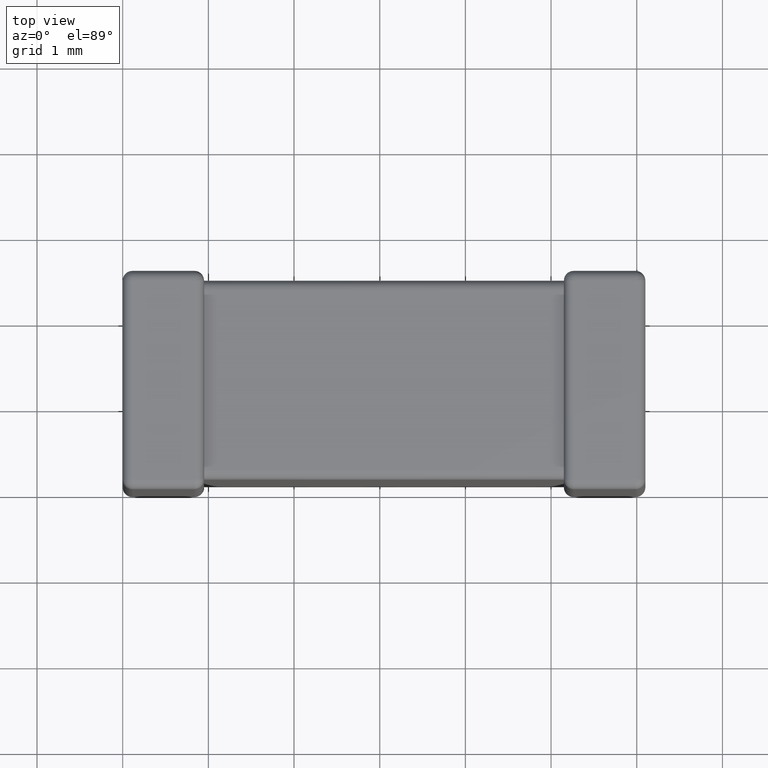
[diagram: clean part render]
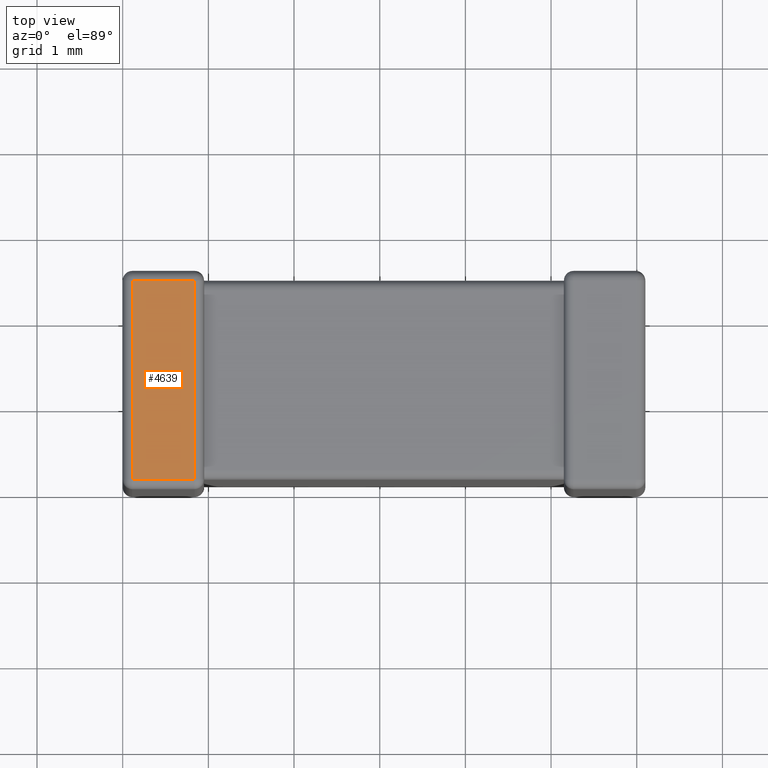
[diagram: same view with one face highlighted and labeled with its STEP entity id]
A machine part, top view. The second image highlights one B-rep face of the part: STEP entity #4639.
In plain terms, the highlighted planar face has unit normal (0, 0, -1).
Its self-contained STEP definition (entity closure, byte-faithful):
#75 = AXIS2_PLACEMENT_3D ( 'NONE', #4013, #2242, #2616 ) ;
#135 = EDGE_CURVE ( 'NONE', #1201, #326, #1331, .T. ) ;
#301 = LINE ( 'NONE', #3499, #1588 ) ;
#326 = VERTEX_POINT ( 'NONE', #2099 ) ;
#621 = DIRECTION ( 'NONE',  ( 1.000000000000000000, -0.0000000000000000000, -0.0000000000000000000 ) ) ;
#786 = PLANE ( 'NONE',  #75 ) ;
#829 = EDGE_LOOP ( 'NONE', ( #1119, #3995, #4625, #3532 ) ) ;
#906 = FACE_OUTER_BOUND ( 'NONE', #829, .T. ) ;
#1119 = ORIENTED_EDGE ( 'NONE', *, *, #1998, .T. ) ;
#1126 = EDGE_CURVE ( 'NONE', #2282, #2285, #1428, .T. ) ;
#1141 = CARTESIAN_POINT ( 'NONE',  ( 0.1123199999999999500, 0.0000000000000000000, 0.0000000000000000000 ) ) ;
#1201 = VERTEX_POINT ( 'NONE', #2668 ) ;
#1264 = CARTESIAN_POINT ( 'NONE',  ( 0.1123199999999999500, 0.1123200000000000000, 0.0000000000000000000 ) ) ;
#1331 = LINE ( 'NONE', #2800, #3774 ) ;
#1425 = LINE ( 'NONE', #2095, #1491 ) ;
#1428 = LINE ( 'NONE', #1141, #3300 ) ;
#1491 = VECTOR ( 'NONE', #621, 1000.000000000000000 ) ;
#1511 = DIRECTION ( 'NONE',  ( 0.0000000000000000000, -1.000000000000000000, 0.0000000000000000000 ) ) ;
#1588 = VECTOR ( 'NONE', #1682, 1000.000000000000000 ) ;
#1682 = DIRECTION ( 'NONE',  ( -1.000000000000000000, 0.0000000000000000000, 0.0000000000000000000 ) ) ;
#1998 = EDGE_CURVE ( 'NONE', #2285, #1201, #1425, .T. ) ;
#2095 = CARTESIAN_POINT ( 'NONE',  ( 6.100000000000000500, 0.1123200000000000000, 0.0000000000000000000 ) ) ;
#2099 = CARTESIAN_POINT ( 'NONE',  ( 0.8376799999999999800, 2.437679999999999800, 0.0000000000000000000 ) ) ;
#2242 = DIRECTION ( 'NONE',  ( 0.0000000000000000000, 0.0000000000000000000, -1.000000000000000000 ) ) ;
#2282 = VERTEX_POINT ( 'NONE', #2315 ) ;
#2285 = VERTEX_POINT ( 'NONE', #1264 ) ;
#2315 = CARTESIAN_POINT ( 'NONE',  ( 0.1123199999999999500, 2.437679999999999800, 0.0000000000000000000 ) ) ;
#2381 = DIRECTION ( 'NONE',  ( 3.861118847882852900E-015, 1.000000000000000000, -0.0000000000000000000 ) ) ;
#2616 = DIRECTION ( 'NONE',  ( -1.000000000000000000, 0.0000000000000000000, -0.0000000000000000000 ) ) ;
#2668 = CARTESIAN_POINT ( 'NONE',  ( 0.8376799999999909900, 0.1123200000000000000, 0.0000000000000000000 ) ) ;
#2779 = EDGE_CURVE ( 'NONE', #326, #2282, #301, .T. ) ;
#2800 = CARTESIAN_POINT ( 'NONE',  ( 0.8376799999999908800, 2.031844293559093200E-014, 0.0000000000000000000 ) ) ;
#3300 = VECTOR ( 'NONE', #1511, 1000.000000000000000 ) ;
#3499 = CARTESIAN_POINT ( 'NONE',  ( 6.100000000000000500, 2.437679999999999800, 0.0000000000000000000 ) ) ;
#3532 = ORIENTED_EDGE ( 'NONE', *, *, #1126, .T. ) ;
#3774 = VECTOR ( 'NONE', #2381, 1000.000000000000000 ) ;
#3995 = ORIENTED_EDGE ( 'NONE', *, *, #135, .T. ) ;
#4013 = CARTESIAN_POINT ( 'NONE',  ( 6.100000000000000500, 0.0000000000000000000, 0.0000000000000000000 ) ) ;
#4625 = ORIENTED_EDGE ( 'NONE', *, *, #2779, .T. ) ;
#4639 = ADVANCED_FACE ( 'NONE', ( #906 ), #786, .F. ) ;